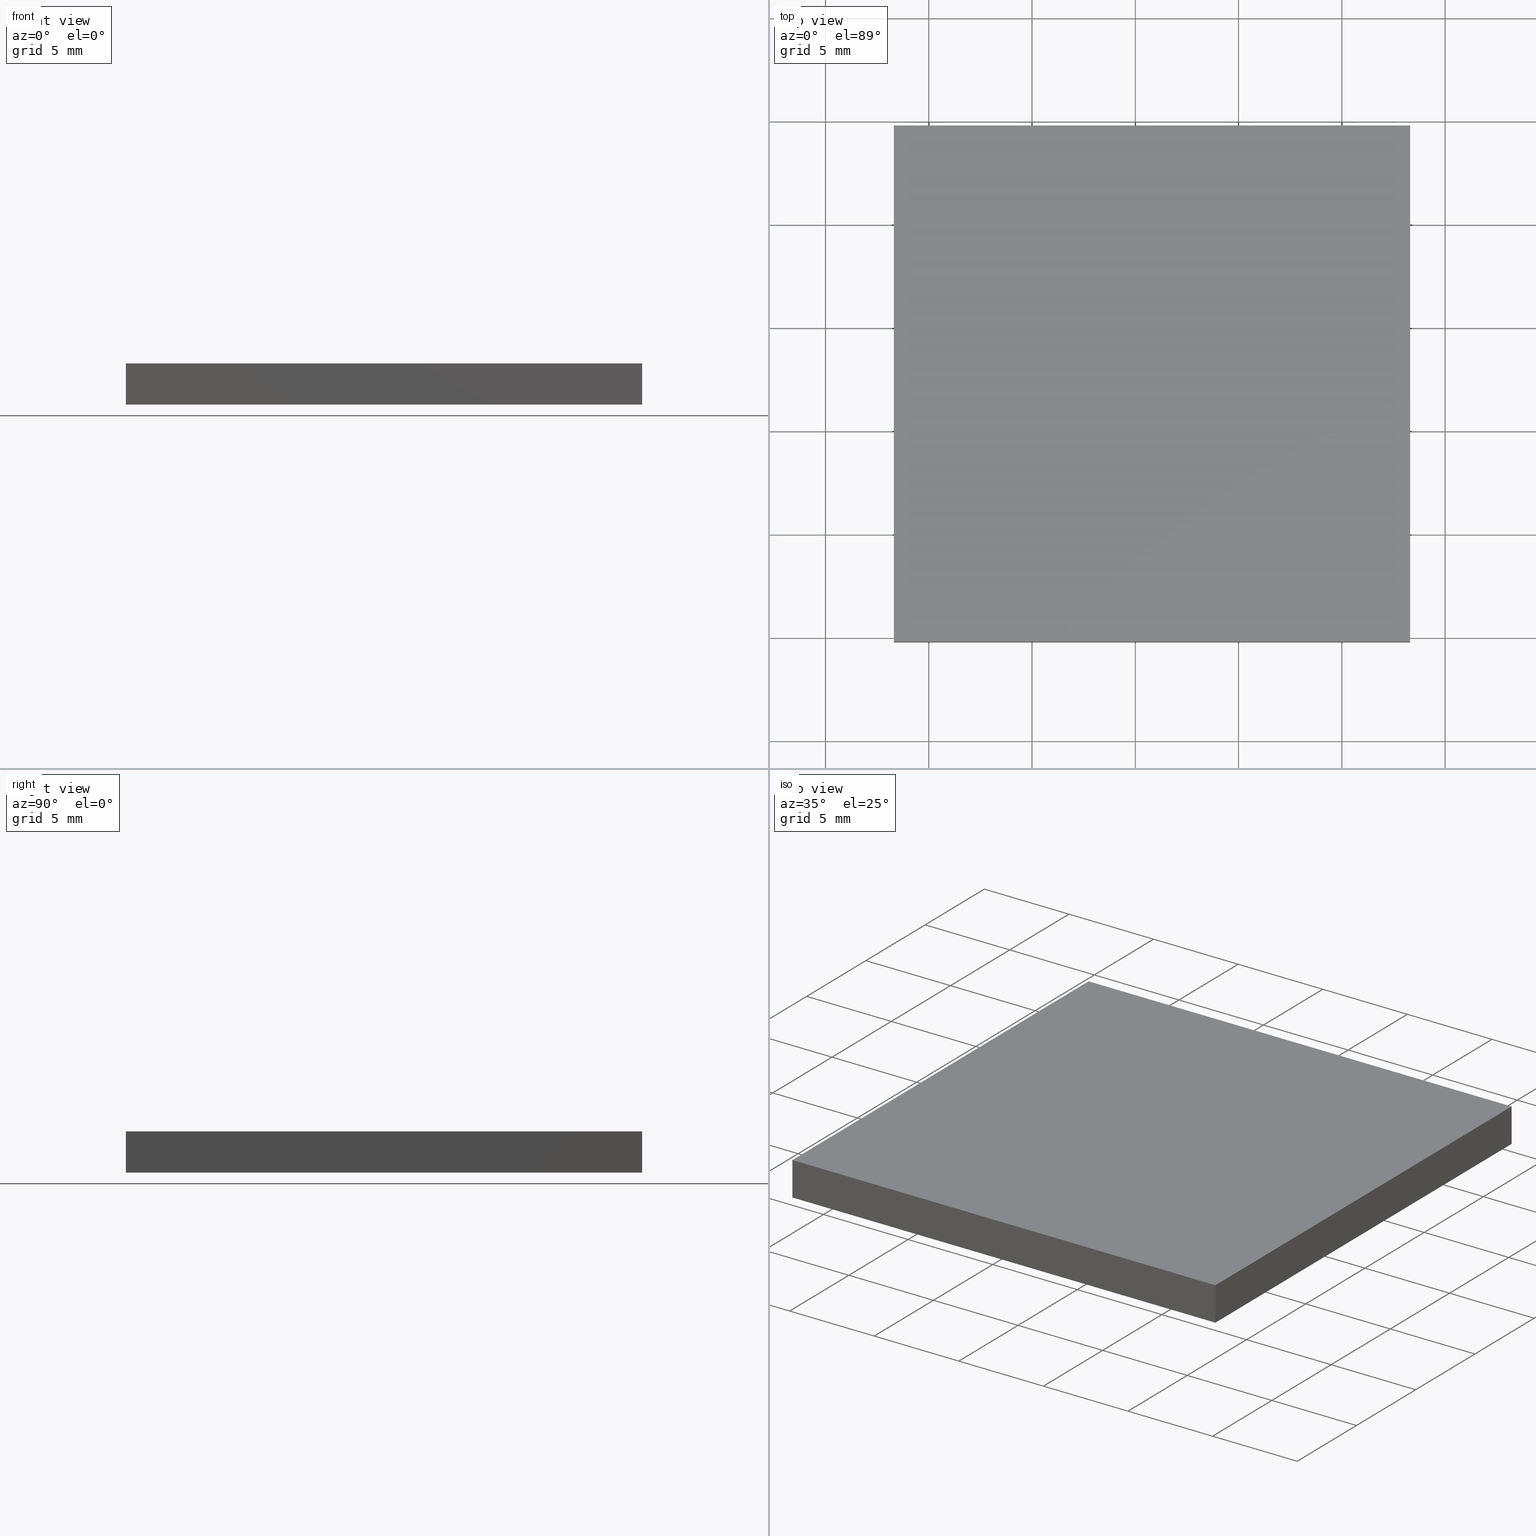
[diagram: canonical four-view strip — front | top / right | iso, engineering-drawing reading convention]
A machine part, canonical four-view strip (front | top / right | iso — engineering-drawing reading convention). The complete STEP part file that produces these views, byte-faithful:
ISO-10303-21;
HEADER;
FILE_DESCRIPTION (( 'STEP AP214' ),
    '1' );
FILE_NAME ('260008.STEP',
    '2019-07-16T02:59:04',
    ( '' ),
    ( '' ),
    'SwSTEP 2.0',
    'SolidWorks 2016',
    '' );
FILE_SCHEMA (( 'AUTOMOTIVE_DESIGN' ));
ENDSEC;

DATA;
#1 = EDGE_LOOP ( 'NONE', ( #109, #115, #189, #83 ) ) ;
#2 = LINE ( 'NONE', #12, #66 ) ;
#3 = DIRECTION ( 'NONE',  ( -1.000000000000000000, 0.0000000000000000000, 0.0000000000000000000 ) ) ;
#4 = LINE ( 'NONE', #63, #105 ) ;
#5 = ORIENTED_EDGE ( 'NONE', *, *, #42, .T. ) ;
#6 = PLANE ( 'NONE',  #111 ) ;
#7 = CARTESIAN_POINT ( 'NONE',  ( 233.3087717288429700, 64.79317934901541800, 2.000000000000000000 ) ) ;
#8 = CARTESIAN_POINT ( 'NONE',  ( 208.3087717288429400, 89.79317934901541800, 2.000000000000000000 ) ) ;
#9 = CARTESIAN_POINT ( 'NONE',  ( 208.3087717288429400, 77.29317934901541800, 0.0000000000000000000 ) ) ;
#10 = APPLICATION_CONTEXT ( 'automotive_design' ) ;
#11 = LINE ( 'NONE', #41, #191 ) ;
#12 = CARTESIAN_POINT ( 'NONE',  ( 208.3087717288429400, 64.79317934901541800, 2.000000000000000000 ) ) ;
#13 = APPLICATION_PROTOCOL_DEFINITION ( 'draft international standard', 'automotive_design', 1998, #25 ) ;
#14 = ORIENTED_EDGE ( 'NONE', *, *, #42, .F. ) ;
#15 = CARTESIAN_POINT ( 'NONE',  ( 208.3087717288429400, 64.79317934901541800, 0.0000000000000000000 ) ) ;
#16 = ORIENTED_EDGE ( 'NONE', *, *, #23, .F. ) ;
#17 = PRESENTATION_STYLE_ASSIGNMENT (( #78 ) ) ;
#18 = LINE ( 'NONE', #199, #80 ) ;
#19 = AXIS2_PLACEMENT_3D ( 'NONE', #89, #198, #116 ) ;
#20 =( NAMED_UNIT ( * ) PLANE_ANGLE_UNIT ( ) SI_UNIT ( $, .RADIAN. ) );
#21 = SURFACE_STYLE_FILL_AREA ( #154 ) ;
#22 = LINE ( 'NONE', #8, #180 ) ;
#23 = EDGE_CURVE ( 'NONE', #36, #86, #197, .T. ) ;
#24 = DIRECTION ( 'NONE',  ( 0.0000000000000000000, 0.0000000000000000000, 1.000000000000000000 ) ) ;
#25 = APPLICATION_CONTEXT ( 'automotive_design' ) ;
#26 = VERTEX_POINT ( 'NONE', #153 ) ;
#27 =( LENGTH_UNIT ( ) NAMED_UNIT ( * ) SI_UNIT ( .MILLI., .METRE. ) );
#28 = DIRECTION ( 'NONE',  ( 0.0000000000000000000, 0.0000000000000000000, -1.000000000000000000 ) ) ;
#29 = CARTESIAN_POINT ( 'NONE',  ( 233.3087717288429700, 64.79317934901541800, 2.000000000000000000 ) ) ;
#30 = VECTOR ( 'NONE', #55, 1000.000000000000000 ) ;
#31 = EDGE_LOOP ( 'NONE', ( #48, #179, #128, #108 ) ) ;
#32 = UNCERTAINTY_MEASURE_WITH_UNIT (LENGTH_MEASURE( 1.000000000000000100E-005 ), #27, 'distance_accuracy_value', 'NONE');
#33 = PLANE ( 'NONE',  #138 ) ;
#34 = CARTESIAN_POINT ( 'NONE',  ( 233.3087717288429700, 89.79317934901541800, 2.000000000000000000 ) ) ;
#35 = EDGE_CURVE ( 'NONE', #26, #92, #173, .T. ) ;
#36 = VERTEX_POINT ( 'NONE', #136 ) ;
#37 = DIRECTION ( 'NONE',  ( 0.0000000000000000000, -1.000000000000000000, 0.0000000000000000000 ) ) ;
#38 = ADVANCED_FACE ( 'NONE', ( #88 ), #6, .F. ) ;
#39 = AXIS2_PLACEMENT_3D ( 'NONE', #175, #160, #60 ) ;
#40 = VERTEX_POINT ( 'NONE', #56 ) ;
#41 = CARTESIAN_POINT ( 'NONE',  ( 233.3087717288429700, 89.79317934901541800, 0.0000000000000000000 ) ) ;
#42 = EDGE_CURVE ( 'NONE', #152, #40, #11, .T. ) ;
#43 = DIRECTION ( 'NONE',  ( -0.0000000000000000000, -0.0000000000000000000, -1.000000000000000000 ) ) ;
#44 = ORIENTED_EDGE ( 'NONE', *, *, #75, .T. ) ;
#45 = ORIENTED_EDGE ( 'NONE', *, *, #148, .T. ) ;
#46 = EDGE_CURVE ( 'NONE', #123, #40, #157, .T. ) ;
#47 = CARTESIAN_POINT ( 'NONE',  ( 233.3087717288429700, 89.79317934901541800, 2.000000000000000000 ) ) ;
#48 = ORIENTED_EDGE ( 'NONE', *, *, #35, .T. ) ;
#49 = FACE_OUTER_BOUND ( 'NONE', #145, .T. ) ;
#50 = ADVANCED_FACE ( 'NONE', ( #140 ), #58, .T. ) ;
#51 = EDGE_CURVE ( 'NONE', #86, #123, #98, .T. ) ;
#52 = ORIENTED_EDGE ( 'NONE', *, *, #196, .T. ) ;
#53 = EDGE_CURVE ( 'NONE', #92, #152, #163, .T. ) ;
#54 = CARTESIAN_POINT ( 'NONE',  ( 233.3087717288429700, 89.79317934901541800, 2.000000000000000000 ) ) ;
#55 = DIRECTION ( 'NONE',  ( -0.0000000000000000000, 1.000000000000000000, -0.0000000000000000000 ) ) ;
#56 = CARTESIAN_POINT ( 'NONE',  ( 233.3087717288429700, 89.79317934901541800, 0.0000000000000000000 ) ) ;
#57 = VECTOR ( 'NONE', #139, 1000.000000000000000 ) ;
#58 = PLANE ( 'NONE',  #19 ) ;
#59 = PRODUCT_CONTEXT ( 'NONE', #25, 'mechanical' ) ;
#60 = DIRECTION ( 'NONE',  ( 0.0000000000000000000, 0.0000000000000000000, -1.000000000000000000 ) ) ;
#61 = AXIS2_PLACEMENT_3D ( 'NONE', #127, #195, #201 ) ;
#62 = LINE ( 'NONE', #70, #95 ) ;
#63 = CARTESIAN_POINT ( 'NONE',  ( 233.3087717288429700, 64.79317934901541800, 2.000000000000000000 ) ) ;
#64 = ORIENTED_EDGE ( 'NONE', *, *, #148, .F. ) ;
#65 = EDGE_CURVE ( 'NONE', #36, #92, #132, .T. ) ;
#66 = VECTOR ( 'NONE', #106, 1000.000000000000000 ) ;
#67 = VECTOR ( 'NONE', #187, 1000.000000000000000 ) ;
#68 = SURFACE_SIDE_STYLE ('',( #184 ) ) ;
#69 = FILL_AREA_STYLE ('',( #164 ) ) ;
#70 = CARTESIAN_POINT ( 'NONE',  ( 208.3087717288429400, 89.79317934901541800, 0.0000000000000000000 ) ) ;
#71 = UNCERTAINTY_MEASURE_WITH_UNIT (LENGTH_MEASURE( 1.000000000000000100E-005 ), #94, 'distance_accuracy_value', 'NONE');
#72 = ORIENTED_EDGE ( 'NONE', *, *, #53, .F. ) ;
#73 = PRODUCT_DEFINITION_SHAPE ( 'NONE', 'NONE',  #99 ) ;
#74 =( GEOMETRIC_REPRESENTATION_CONTEXT ( 3 ) GLOBAL_UNCERTAINTY_ASSIGNED_CONTEXT ( ( #32 ) ) GLOBAL_UNIT_ASSIGNED_CONTEXT ( ( #27, #104, #121 ) ) REPRESENTATION_CONTEXT ( 'NONE', 'WORKASPACE' ) );
#75 = EDGE_CURVE ( 'NONE', #76, #36, #2, .T. ) ;
#76 = VERTEX_POINT ( 'NONE', #91 ) ;
#77 = PRODUCT_DEFINITION_FORMATION_WITH_SPECIFIED_SOURCE ( '�κ�', '', #147, .NOT_KNOWN. ) ;
#78 = SURFACE_STYLE_USAGE ( .BOTH. , #202 ) ;
#79 = EDGE_LOOP ( 'NONE', ( #44, #190, #194, #52 ) ) ;
#80 = VECTOR ( 'NONE', #137, 1000.000000000000000 ) ;
#81 = MECHANICAL_DESIGN_GEOMETRIC_PRESENTATION_REPRESENTATION (  '', ( #162 ), #93 ) ;
#82 = EDGE_LOOP ( 'NONE', ( #72, #117, #167, #14 ) ) ;
#83 = ORIENTED_EDGE ( 'NONE', *, *, #46, .T. ) ;
#84 =( NAMED_UNIT ( * ) SI_UNIT ( $, .STERADIAN. ) SOLID_ANGLE_UNIT ( ) );
#85 =( GEOMETRIC_REPRESENTATION_CONTEXT ( 3 ) GLOBAL_UNCERTAINTY_ASSIGNED_CONTEXT ( ( #71 ) ) GLOBAL_UNIT_ASSIGNED_CONTEXT ( ( #94, #20, #84 ) ) REPRESENTATION_CONTEXT ( 'NONE', 'WORKASPACE' ) );
#86 = VERTEX_POINT ( 'NONE', #29 ) ;
#87 =( NAMED_UNIT ( * ) SI_UNIT ( $, .STERADIAN. ) SOLID_ANGLE_UNIT ( ) );
#88 = FACE_OUTER_BOUND ( 'NONE', #79, .T. ) ;
#89 = CARTESIAN_POINT ( 'NONE',  ( 0.0000000000000000000, 0.0000000000000000000, 0.0000000000000000000 ) ) ;
#90 = DIRECTION ( 'NONE',  ( 1.000000000000000000, 0.0000000000000000000, 0.0000000000000000000 ) ) ;
#91 = CARTESIAN_POINT ( 'NONE',  ( 208.3087717288429400, 89.79317934901541800, 2.000000000000000000 ) ) ;
#92 = VERTEX_POINT ( 'NONE', #15 ) ;
#93 =( GEOMETRIC_REPRESENTATION_CONTEXT ( 3 ) GLOBAL_UNCERTAINTY_ASSIGNED_CONTEXT ( ( #100 ) ) GLOBAL_UNIT_ASSIGNED_CONTEXT ( ( #156, #186, #87 ) ) REPRESENTATION_CONTEXT ( 'NONE', 'WORKASPACE' ) );
#94 =( LENGTH_UNIT ( ) NAMED_UNIT ( * ) SI_UNIT ( .MILLI., .METRE. ) );
#95 = VECTOR ( 'NONE', #193, 1000.000000000000000 ) ;
#96 = CARTESIAN_POINT ( 'NONE',  ( 208.3087717288429400, 89.79317934901541800, 2.000000000000000000 ) ) ;
#97 = ADVANCED_FACE ( 'NONE', ( #177 ), #134, .F. ) ;
#98 = LINE ( 'NONE', #54, #30 ) ;
#99 = PRODUCT_DEFINITION ( 'δ֪', '', #77, #161 ) ;
#100 = UNCERTAINTY_MEASURE_WITH_UNIT (LENGTH_MEASURE( 1.000000000000000100E-005 ), #156, 'distance_accuracy_value', 'NONE');
#101 = FILL_AREA_STYLE_COLOUR ( '', #114 ) ;
#102 = ORIENTED_EDGE ( 'NONE', *, *, #51, .F. ) ;
#103 = CARTESIAN_POINT ( 'NONE',  ( 0.0000000000000000000, 0.0000000000000000000, 2.000000000000000000 ) ) ;
#104 =( NAMED_UNIT ( * ) PLANE_ANGLE_UNIT ( ) SI_UNIT ( $, .RADIAN. ) );
#105 = VECTOR ( 'NONE', #176, 1000.000000000000000 ) ;
#106 = DIRECTION ( 'NONE',  ( -0.0000000000000000000, -1.000000000000000000, -0.0000000000000000000 ) ) ;
#107 = PLANE ( 'NONE',  #61 ) ;
#108 = ORIENTED_EDGE ( 'NONE', *, *, #183, .T. ) ;
#109 = ORIENTED_EDGE ( 'NONE', *, *, #131, .T. ) ;
#110 = PRESENTATION_STYLE_ASSIGNMENT (( #144 ) ) ;
#111 = AXIS2_PLACEMENT_3D ( 'NONE', #103, #28, #155 ) ;
#112 = ADVANCED_FACE ( 'NONE', ( #49 ), #33, .F. ) ;
#113 = PRODUCT_RELATED_PRODUCT_CATEGORY ( 'part', '', ( #147 ) ) ;
#114 = COLOUR_RGB ( '',1.000000000000000000, 1.000000000000000000, 1.000000000000000000 ) ;
#115 = ORIENTED_EDGE ( 'NONE', *, *, #183, .F. ) ;
#116 = DIRECTION ( 'NONE',  ( -1.000000000000000000, 0.0000000000000000000, -0.0000000000000000000 ) ) ;
#117 = ORIENTED_EDGE ( 'NONE', *, *, #35, .F. ) ;
#118 = APPLICATION_PROTOCOL_DEFINITION ( 'draft international standard', 'automotive_design', 1998, #10 ) ;
#119 = DIRECTION ( 'NONE',  ( -0.0000000000000000000, -0.0000000000000000000, -1.000000000000000000 ) ) ;
#120 = CARTESIAN_POINT ( 'NONE',  ( 233.3087717288429700, 64.79317934901541800, 0.0000000000000000000 ) ) ;
#121 =( NAMED_UNIT ( * ) SI_UNIT ( $, .STERADIAN. ) SOLID_ANGLE_UNIT ( ) );
#122 = VECTOR ( 'NONE', #119, 1000.000000000000000 ) ;
#123 = VERTEX_POINT ( 'NONE', #34 ) ;
#124 = AXIS2_PLACEMENT_3D ( 'NONE', #172, #24, #90 ) ;
#125 = CARTESIAN_POINT ( 'NONE',  ( 233.3087717288429700, 64.79317934901541800, 0.0000000000000000000 ) ) ;
#126 = ORIENTED_EDGE ( 'NONE', *, *, #46, .F. ) ;
#127 = CARTESIAN_POINT ( 'NONE',  ( 233.3087717288429700, 64.79317934901541800, 2.000000000000000000 ) ) ;
#128 = ORIENTED_EDGE ( 'NONE', *, *, #75, .F. ) ;
#129 = SHAPE_DEFINITION_REPRESENTATION ( #73, #141 ) ;
#130 = MANIFOLD_SOLID_BREP ( '͹̨-����1', #174 ) ;
#131 = EDGE_CURVE ( 'NONE', #40, #26, #62, .T. ) ;
#132 = LINE ( 'NONE', #170, #146 ) ;
#133 = PLANE ( 'NONE',  #39 ) ;
#134 = PLANE ( 'NONE',  #168 ) ;
#135 = EDGE_LOOP ( 'NONE', ( #166, #64, #16, #169 ) ) ;
#136 = CARTESIAN_POINT ( 'NONE',  ( 208.3087717288429400, 64.79317934901541800, 2.000000000000000000 ) ) ;
#137 = DIRECTION ( 'NONE',  ( -0.0000000000000000000, -0.0000000000000000000, -1.000000000000000000 ) ) ;
#138 = AXIS2_PLACEMENT_3D ( 'NONE', #47, #3, #178 ) ;
#139 = DIRECTION ( 'NONE',  ( 1.000000000000000000, -0.0000000000000000000, -0.0000000000000000000 ) ) ;
#140 = FACE_OUTER_BOUND ( 'NONE', #82, .T. ) ;
#141 = ADVANCED_BREP_SHAPE_REPRESENTATION ( '260008', ( #130, #124 ), #74 ) ;
#142 = FACE_OUTER_BOUND ( 'NONE', #31, .T. ) ;
#143 = MECHANICAL_DESIGN_GEOMETRIC_PRESENTATION_REPRESENTATION (  '', ( #149 ), #85 ) ;
#144 = SURFACE_STYLE_USAGE ( .BOTH. , #68 ) ;
#145 = EDGE_LOOP ( 'NONE', ( #5, #126, #102, #45 ) ) ;
#146 = VECTOR ( 'NONE', #43, 1000.000000000000000 ) ;
#147 = PRODUCT ( '260008', '260008', '', ( #59 ) ) ;
#148 = EDGE_CURVE ( 'NONE', #86, #152, #4, .T. ) ;
#149 = STYLED_ITEM ( 'NONE', ( #110 ), #130 ) ;
#150 = FACE_OUTER_BOUND ( 'NONE', #135, .T. ) ;
#151 = DIRECTION ( 'NONE',  ( 1.000000000000000000, -0.0000000000000000000, -0.0000000000000000000 ) ) ;
#152 = VERTEX_POINT ( 'NONE', #125 ) ;
#153 = CARTESIAN_POINT ( 'NONE',  ( 208.3087717288429400, 89.79317934901541800, 0.0000000000000000000 ) ) ;
#154 = FILL_AREA_STYLE ('',( #101 ) ) ;
#155 = DIRECTION ( 'NONE',  ( -1.000000000000000000, 0.0000000000000000000, -0.0000000000000000000 ) ) ;
#156 =( LENGTH_UNIT ( ) NAMED_UNIT ( * ) SI_UNIT ( .MILLI., .METRE. ) );
#157 = LINE ( 'NONE', #171, #122 ) ;
#158 = PRESENTATION_LAYER_ASSIGNMENT (  '', '', ( #162 ) ) ;
#159 = VECTOR ( 'NONE', #151, 1000.000000000000000 ) ;
#160 = DIRECTION ( 'NONE',  ( 1.000000000000000000, 0.0000000000000000000, 0.0000000000000000000 ) ) ;
#161 = PRODUCT_DEFINITION_CONTEXT ( 'detailed design', #10, 'design' ) ;
#162 = STYLED_ITEM ( 'NONE', ( #17 ), #141 ) ;
#163 = LINE ( 'NONE', #120, #57 ) ;
#164 = FILL_AREA_STYLE_COLOUR ( '', #192 ) ;
#165 = ADVANCED_FACE ( 'NONE', ( #142 ), #133, .F. ) ;
#166 = ORIENTED_EDGE ( 'NONE', *, *, #53, .T. ) ;
#167 = ORIENTED_EDGE ( 'NONE', *, *, #131, .F. ) ;
#168 = AXIS2_PLACEMENT_3D ( 'NONE', #96, #37, #182 ) ;
#169 = ORIENTED_EDGE ( 'NONE', *, *, #65, .T. ) ;
#170 = CARTESIAN_POINT ( 'NONE',  ( 208.3087717288429400, 64.79317934901541800, 2.000000000000000000 ) ) ;
#171 = CARTESIAN_POINT ( 'NONE',  ( 233.3087717288429700, 89.79317934901541800, 2.000000000000000000 ) ) ;
#172 = CARTESIAN_POINT ( 'NONE',  ( 0.0000000000000000000, 0.0000000000000000000, 0.0000000000000000000 ) ) ;
#173 = LINE ( 'NONE', #9, #67 ) ;
#174 = CLOSED_SHELL ( 'NONE', ( #181, #112, #97, #165, #38, #50 ) ) ;
#175 = CARTESIAN_POINT ( 'NONE',  ( 208.3087717288429400, 77.29317934901541800, 2.000000000000000000 ) ) ;
#176 = DIRECTION ( 'NONE',  ( -0.0000000000000000000, -0.0000000000000000000, -1.000000000000000000 ) ) ;
#177 = FACE_OUTER_BOUND ( 'NONE', #1, .T. ) ;
#178 = DIRECTION ( 'NONE',  ( 0.0000000000000000000, 0.0000000000000000000, 1.000000000000000000 ) ) ;
#179 = ORIENTED_EDGE ( 'NONE', *, *, #65, .F. ) ;
#180 = VECTOR ( 'NONE', #188, 1000.000000000000000 ) ;
#181 = ADVANCED_FACE ( 'NONE', ( #150 ), #107, .F. ) ;
#182 = DIRECTION ( 'NONE',  ( 0.0000000000000000000, -0.0000000000000000000, -1.000000000000000000 ) ) ;
#183 = EDGE_CURVE ( 'NONE', #76, #26, #18, .T. ) ;
#184 = SURFACE_STYLE_FILL_AREA ( #69 ) ;
#185 = DIRECTION ( 'NONE',  ( -0.0000000000000000000, 1.000000000000000000, -0.0000000000000000000 ) ) ;
#186 =( NAMED_UNIT ( * ) PLANE_ANGLE_UNIT ( ) SI_UNIT ( $, .RADIAN. ) );
#187 = DIRECTION ( 'NONE',  ( -0.0000000000000000000, -1.000000000000000000, -0.0000000000000000000 ) ) ;
#188 = DIRECTION ( 'NONE',  ( -1.000000000000000000, -0.0000000000000000000, -0.0000000000000000000 ) ) ;
#189 = ORIENTED_EDGE ( 'NONE', *, *, #196, .F. ) ;
#190 = ORIENTED_EDGE ( 'NONE', *, *, #23, .T. ) ;
#191 = VECTOR ( 'NONE', #185, 1000.000000000000000 ) ;
#192 = COLOUR_RGB ( '',1.000000000000000000, 1.000000000000000000, 1.000000000000000000 ) ;
#193 = DIRECTION ( 'NONE',  ( -1.000000000000000000, -0.0000000000000000000, -0.0000000000000000000 ) ) ;
#194 = ORIENTED_EDGE ( 'NONE', *, *, #51, .T. ) ;
#195 = DIRECTION ( 'NONE',  ( 0.0000000000000000000, 1.000000000000000000, -0.0000000000000000000 ) ) ;
#196 = EDGE_CURVE ( 'NONE', #123, #76, #22, .T. ) ;
#197 = LINE ( 'NONE', #7, #159 ) ;
#198 = DIRECTION ( 'NONE',  ( 0.0000000000000000000, 0.0000000000000000000, -1.000000000000000000 ) ) ;
#199 = CARTESIAN_POINT ( 'NONE',  ( 208.3087717288429400, 89.79317934901541800, 2.000000000000000000 ) ) ;
#200 = PRESENTATION_LAYER_ASSIGNMENT (  '', '', ( #149 ) ) ;
#201 = DIRECTION ( 'NONE',  ( 0.0000000000000000000, 0.0000000000000000000, 1.000000000000000000 ) ) ;
#202 = SURFACE_SIDE_STYLE ('',( #21 ) ) ;
ENDSEC;
END-ISO-10303-21;
